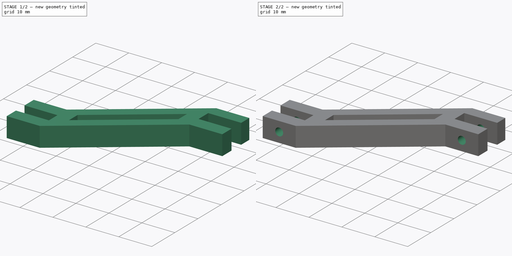
[diagram: build sequence overview — one tinted view per stage of 2, left to right]
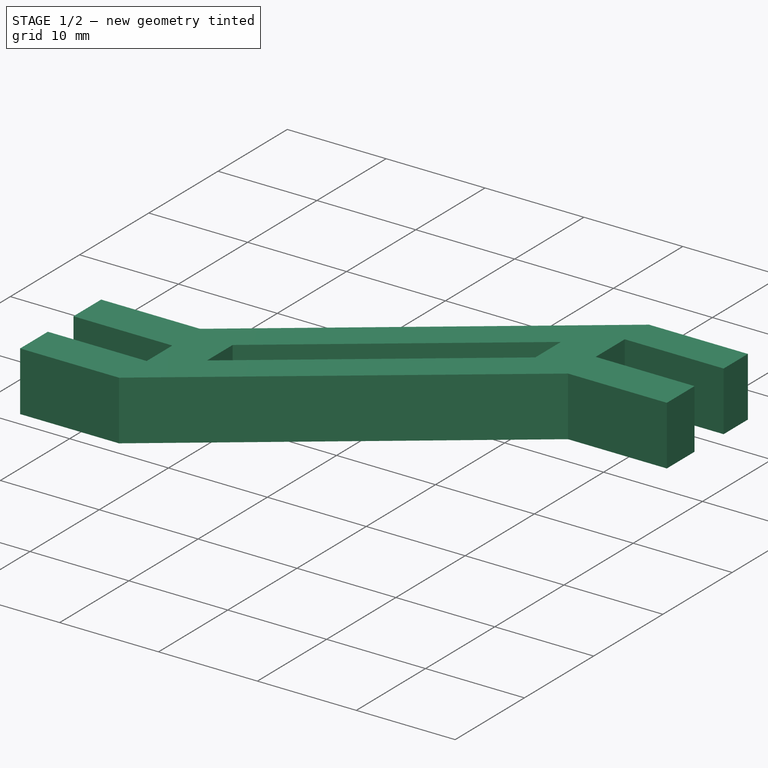
[diagram: stage 1 of 2 — iso view after this stage's code; geometry added in this stage tinted green]
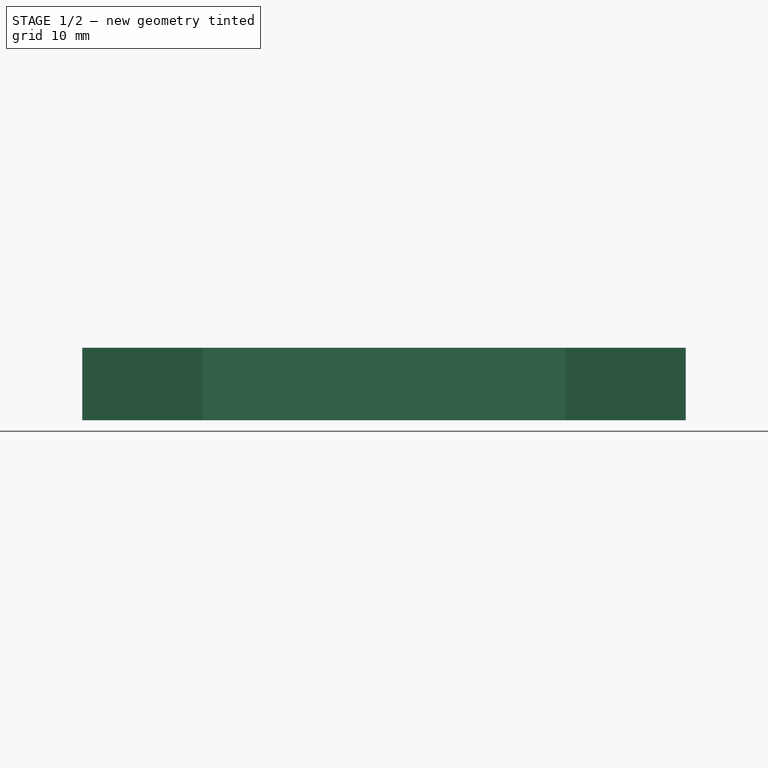
[diagram: stage 1 of 2 — front view after this stage's code; geometry added in this stage tinted green]
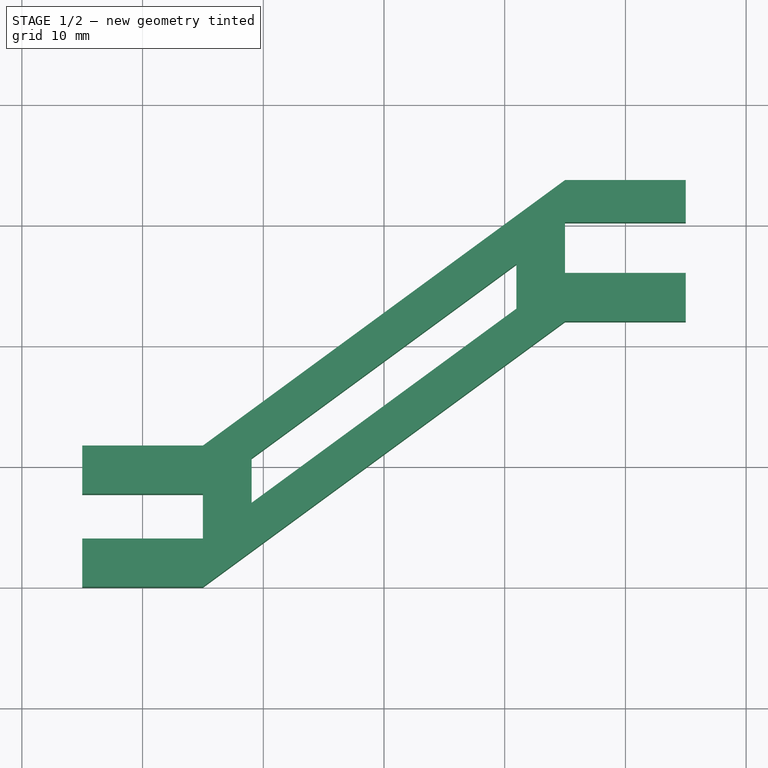
[diagram: stage 1 of 2 — top view after this stage's code; geometry added in this stage tinted green]
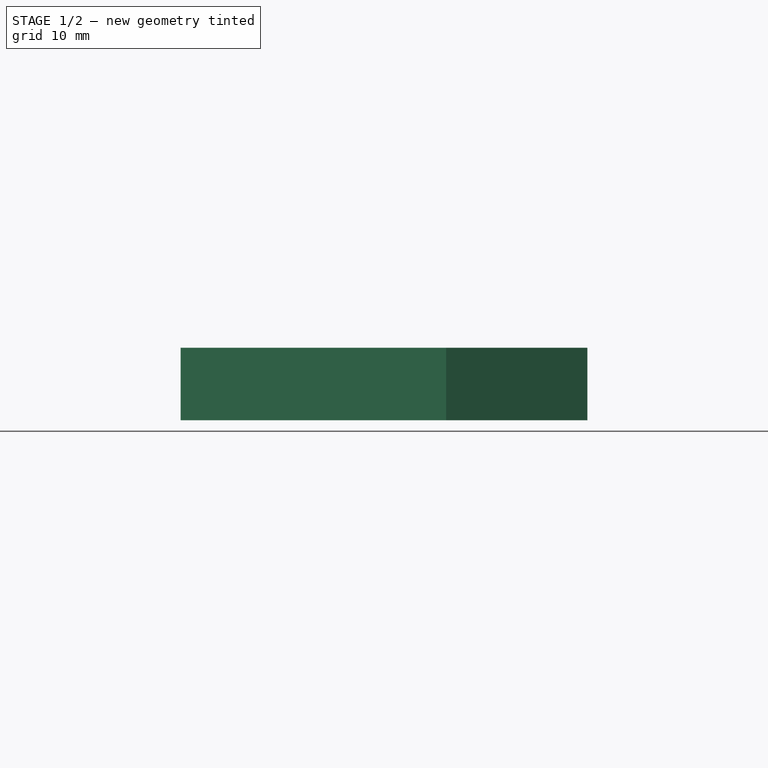
[diagram: stage 1 of 2 — right view after this stage's code; geometry added in this stage tinted green]
FCSTD DOCUMENT  (FreeCAD 0.21R33668 +7 (Git))
Label: 4_UpperArm_Rod
License: All rights reserved
LicenseURL: http://en.wikipedia.org/wiki/All_rights_reserved
objects: Sketcher::SketchObject×2, PartDesign::Pad×1, PartDesign::Pocket×1, PartDesign::Body×1
note: 7 computed .brp shape members not serialized (recipe doc carries the construction recipe); baked Part::Feature solids carry a one-line shape summary decoded from their .brp

FEATURE [Sketcher::SketchObject] Sketch
  FullyConstrained = true
  MapMode = 5
  Support = -> [XY_Plane]
  sketch-geometry (23):
    g0: LineSegment StartX=-5 StartY=11.7 StartZ=0 EndX=5 EndY=11.7 EndZ=0
    g1: LineSegment StartX=5 StartY=11.7 StartZ=0 EndX=35 EndY=33.7 EndZ=0
    g2: LineSegment StartX=35 StartY=33.7 StartZ=0 EndX=45 EndY=33.7 EndZ=0
    g3: LineSegment StartX=45 StartY=22 StartZ=0 EndX=35 EndY=22 EndZ=0
    g4: LineSegment StartX=35 StartY=22 StartZ=0 EndX=5 EndY=0 EndZ=0
    g5: LineSegment StartX=5 StartY=0 StartZ=0 EndX=-5 EndY=0 EndZ=0
    g6: LineSegment StartX=-5 StartY=11.7 StartZ=0 EndX=-5 EndY=7.7 EndZ=0
    g7: LineSegment StartX=5 StartY=7.7 StartZ=0 EndX=5 EndY=4 EndZ=0
    g8: LineSegment StartX=5 StartY=4 StartZ=0 EndX=-5 EndY=4 EndZ=0
    g9: LineSegment StartX=-5 StartY=4 StartZ=0 EndX=-5 EndY=0 EndZ=0
    g10: LineSegment StartX=35 StartY=26 StartZ=0 EndX=45 EndY=26 EndZ=0
    g11: LineSegment StartX=45 StartY=26 StartZ=0 EndX=45 EndY=22 EndZ=0
    g12: LineSegment StartX=-5 StartY=7.7 StartZ=0 EndX=5 EndY=7.7 EndZ=0
    g13: LineSegment StartX=40 StartY=33.7 StartZ=0 EndX=40 EndY=22 EndZ=0
    g14: LineSegment StartX=5 StartY=7.7 StartZ=0 EndX=35 EndY=29.7 EndZ=0
    g15: LineSegment StartX=5 StartY=4 StartZ=0 EndX=35 EndY=26 EndZ=0
    g16: LineSegment StartX=9.03202 StartY=10.6568 StartZ=0 EndX=30.968 EndY=26.7432 EndZ=0
    g17: LineSegment StartX=9.03202 StartY=6.95682 StartZ=0 EndX=30.968 EndY=23.0432 EndZ=0
    g18: LineSegment StartX=9.03202 StartY=10.6568 StartZ=0 EndX=9.03202 EndY=6.95682 EndZ=0
    g19: LineSegment StartX=30.968 StartY=26.7432 StartZ=0 EndX=30.968 EndY=23.0432 EndZ=0
    g20: LineSegment StartX=35 StartY=26 StartZ=0 EndX=35 EndY=30.2 EndZ=0
    g21: LineSegment StartX=35 StartY=30.2 StartZ=0 EndX=45 EndY=30.2 EndZ=0
    g22: LineSegment StartX=45 StartY=30.2 StartZ=0 EndX=45 EndY=33.7 EndZ=0
  constraints (67):
    c: PointOnObject(g5,g-1)
    c: Coincident(g0,g1)
    c: Coincident(g1,g2)
    c: Horizontal(g2)
    c: Horizontal(g3)
    c: Coincident(g3,g4)
    c: PointOnObject(g4,g-1)
    c: Coincident(g4,g5)
    c: Symmetric(g0,g0,g-2)
    c: Coincident(g0,g6)
    c: Vertical(g6)
    c: Coincident(g8,g9)
    c: Coincident(g9,g5)
    c: Horizontal(g10)
    c: Coincident(g10,g11)
    c: Coincident(g11,g3)
    c: Vertical(g9)
    c: Vertical(g6,g8)
    c: DistanceY(g6,g6) = 4
    c: Equal(g6,g9)
    c: Horizontal(g8)
    c: Coincident(g7,g8)
    c: DistanceY(g7,g7) = 3.7
    c: DistanceX(g5,g5) = 10
    c: Vertical(g11)
    c: Equal(g2,g5)
    c: Equal(g10,g3)
    c: Vertical(g0,g7)
    c: Vertical(g7)
    c: Vertical(g7,g4)
    c: Coincident(g12,g6)
    c: Coincident(g12,g7)
    c: Horizontal(g12)
    c: PointOnObject(g13,g2)
    c: PointOnObject(g13,g3)
    c: Symmetric(g1,g2,g13)
    c: DistanceX(g-1,g13) = 40
    c: DistanceY(g4,g3) = 22
    c: Coincident(g14,g7)
    c: Coincident(g15,g7)
    c: PointOnObject(g16,g14)
    c: PointOnObject(g16,g14)
    c: PointOnObject(g17,g15)
    c: PointOnObject(g17,g15)
    c: Vertical(g16,g17)
    c: Vertical(g16,g17)
    c: Coincident(g18,g16)
    c: Coincident(g19,g16)
    c: Coincident(g19,g17)
    c: Coincident(g18,g17)
    c: Distance(g7,g17) = 5
    c: Distance(g17,g10) = 5
    c: Coincident(g10,g20)
    c: Vertical(g20)
    c: Coincident(g20,g21)
    c: Horizontal(g21)
    c: Coincident(g21,g22)
    c: Coincident(g22,g2)
    c: Vertical(g22)
    c: DistanceY(g20,g20) = 4.2
    c: Equal(g11,g9)
    c: Parallel(g1,g4)
    c: PointOnObject(g14,g20)
    c: Coincident(g10,g15)
    c: Vertical(g20,g1)
    c: Parallel(g17,g16)
    c: Vertical(g21,g10)
FEATURE [PartDesign::Pad] Pad
  Direction = (0,0,1)
  Length = 6
  Length2 = 10
  Profile = -> Sketch
  ReferenceAxis = -> Sketch [N_Axis]
  Type = 0
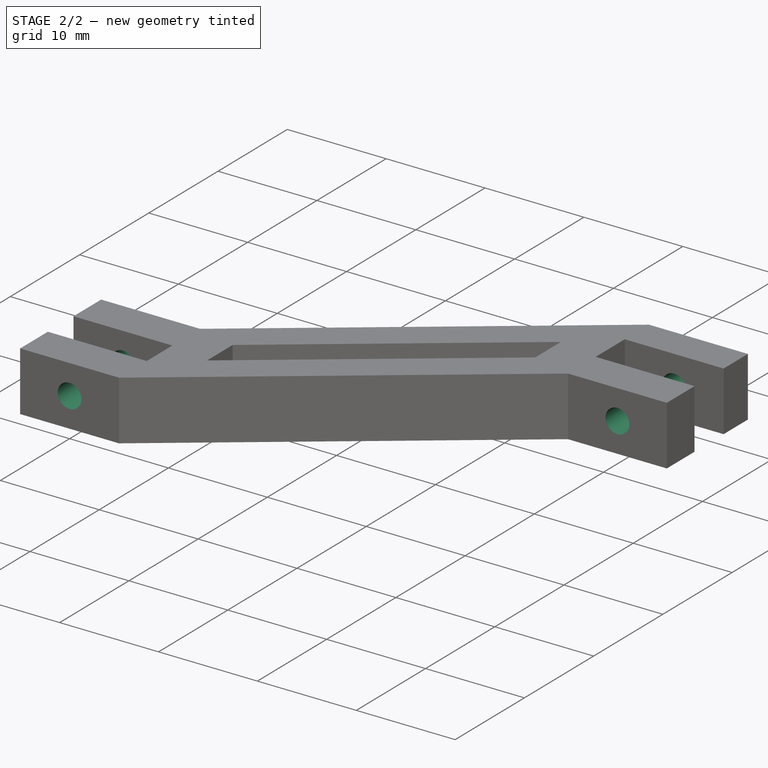
[diagram: stage 2 of 2 — iso view after this stage's code; geometry added in this stage tinted green]
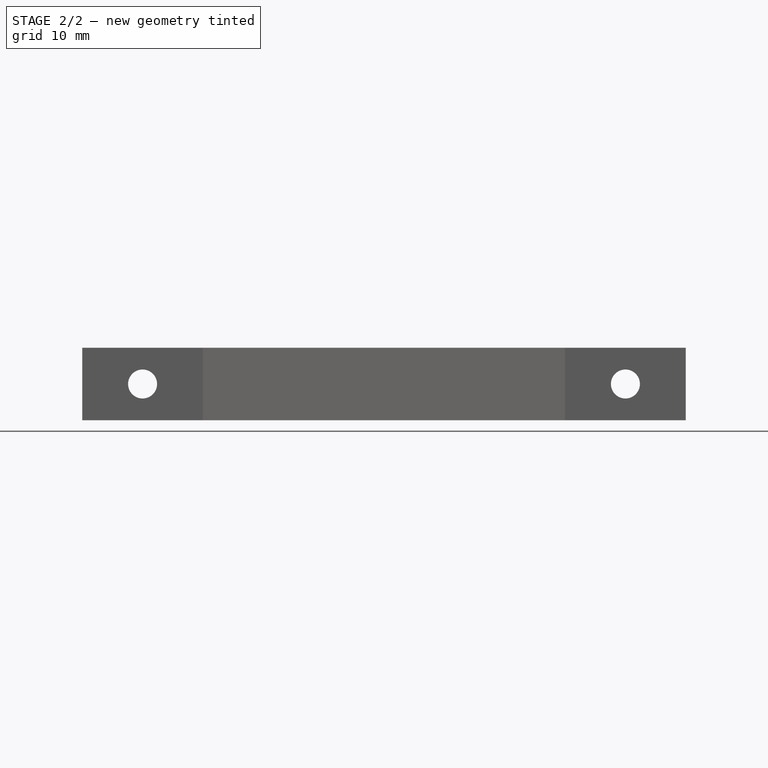
[diagram: stage 2 of 2 — front view after this stage's code; geometry added in this stage tinted green]
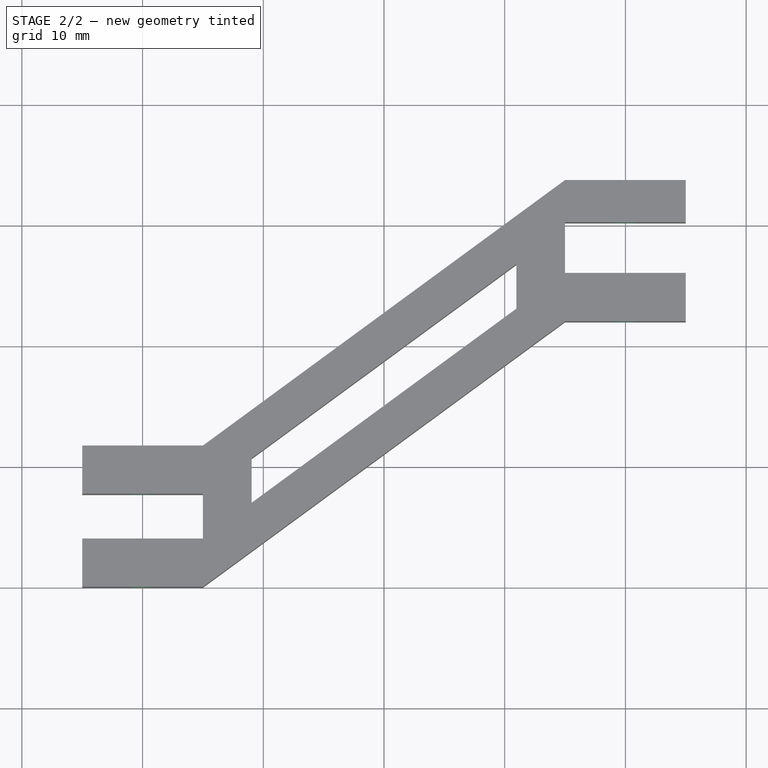
[diagram: stage 2 of 2 — top view after this stage's code; geometry added in this stage tinted green]
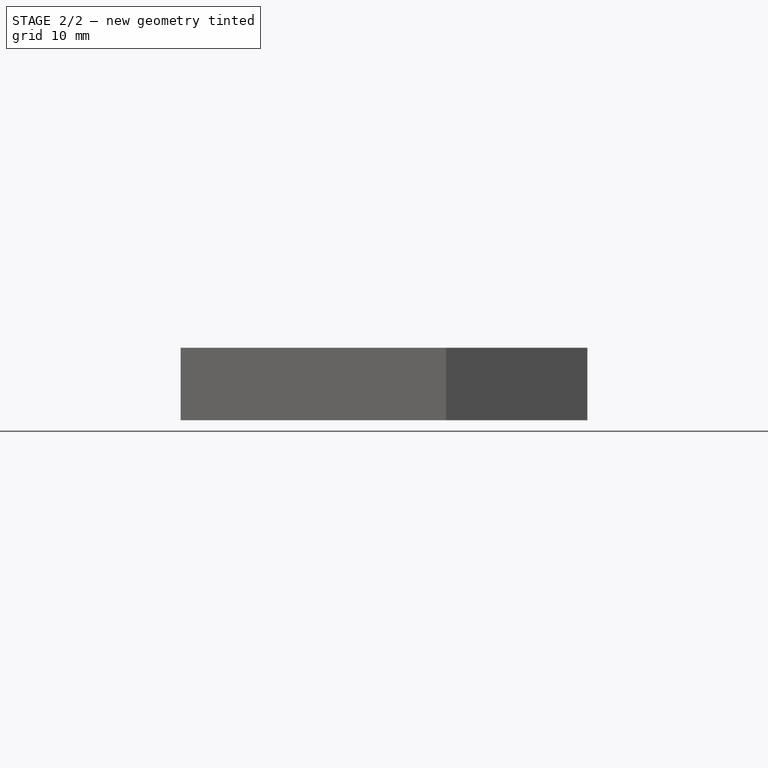
[diagram: stage 2 of 2 — right view after this stage's code; geometry added in this stage tinted green]
FEATURE [Sketcher::SketchObject] Sketch001
  ExternalGeometry = -> [Pad]
  FullyConstrained = true
  MapMode = 5
  Placement = pos=(0,0,0) rot=(1,0,0;1.5708rad)
  Support = -> [Pad]
  sketch-geometry (2):
    g0: Circle CenterX=-2e-16 CenterY=3 CenterZ=0 NormalX=0 NormalY=0 NormalZ=1 AngleXU=0 Radius=1.2
    g1: Circle CenterX=40 CenterY=3 CenterZ=0 NormalX=0 NormalY=0 NormalZ=1 AngleXU=0 Radius=1.2
  constraints (4):
    c: Diameter(g0) = 2.4
    c: Symmetric(g-4,g-3,g0)
    c: Equal(g0,g1)
    c: Symmetric(g-6,g-5,g1)
FEATURE [PartDesign::Pocket] Pocket
  BaseFeature = -> Pad
  Direction = (0,1,-2e-16)
  Length = 50
  Length2 = 5
  Profile = -> Sketch001
  ReferenceAxis = -> Sketch001 [N_Axis]
  Type = 0
FEATURE [PartDesign::Body] Body
  Group = -> [Sketch,Pad,Sketch001,Pocket]
  Origin = -> Origin
  Tip = -> Pocket
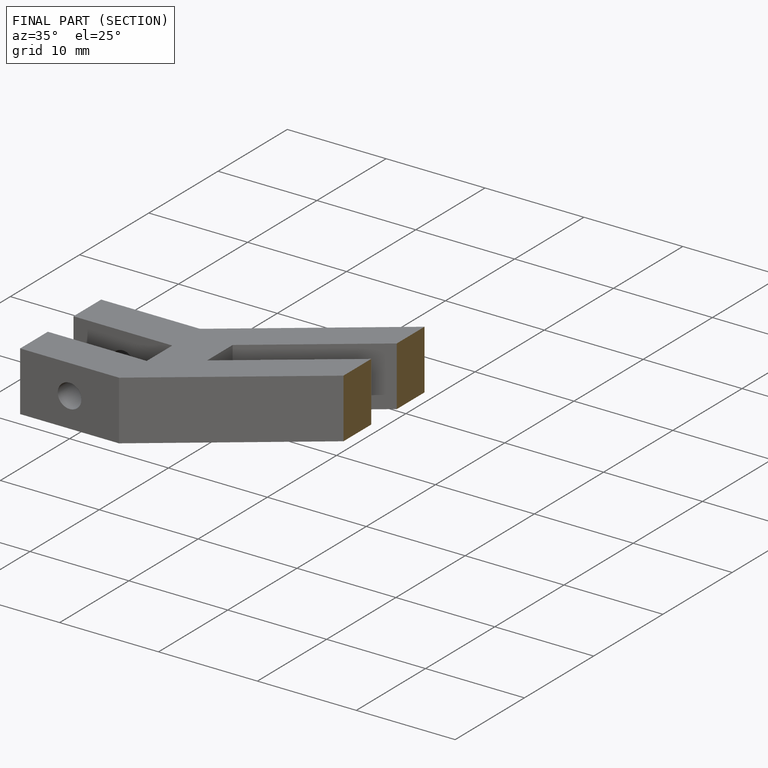
[diagram: finished part — half-section view (interior)]
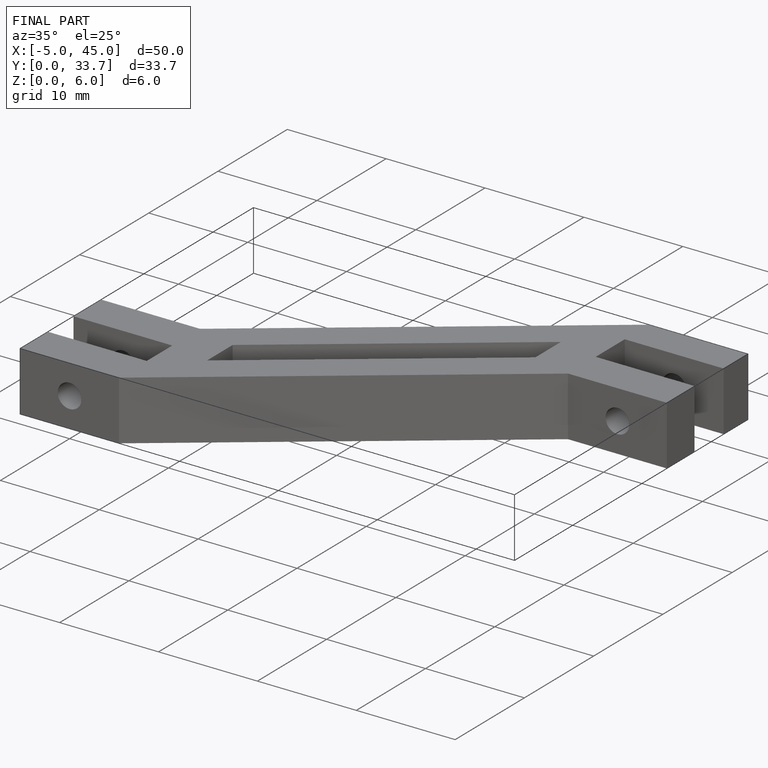
[diagram: finished part — iso view with bounding-box wireframe]
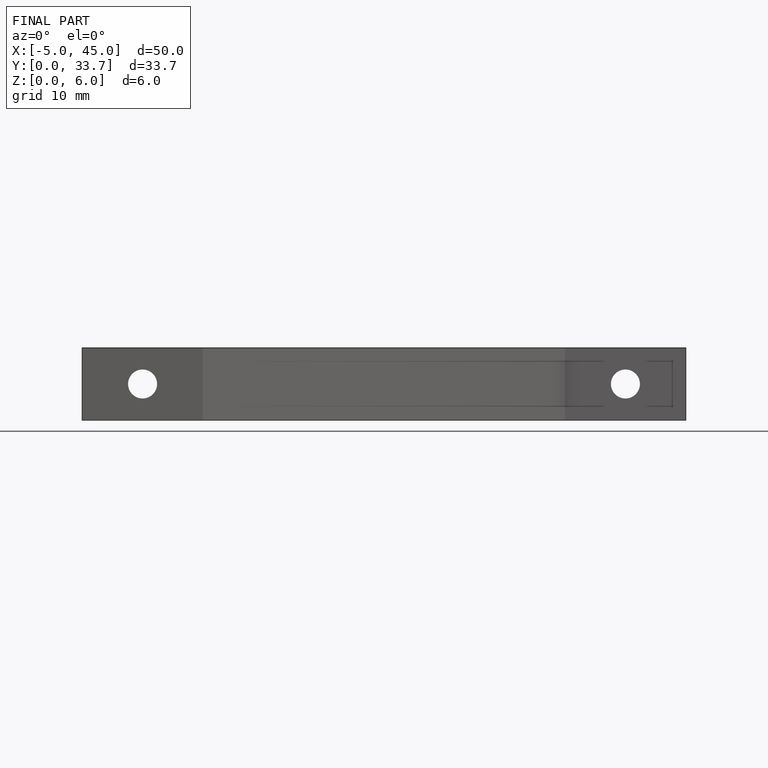
[diagram: finished part — front view with bounding-box wireframe]
